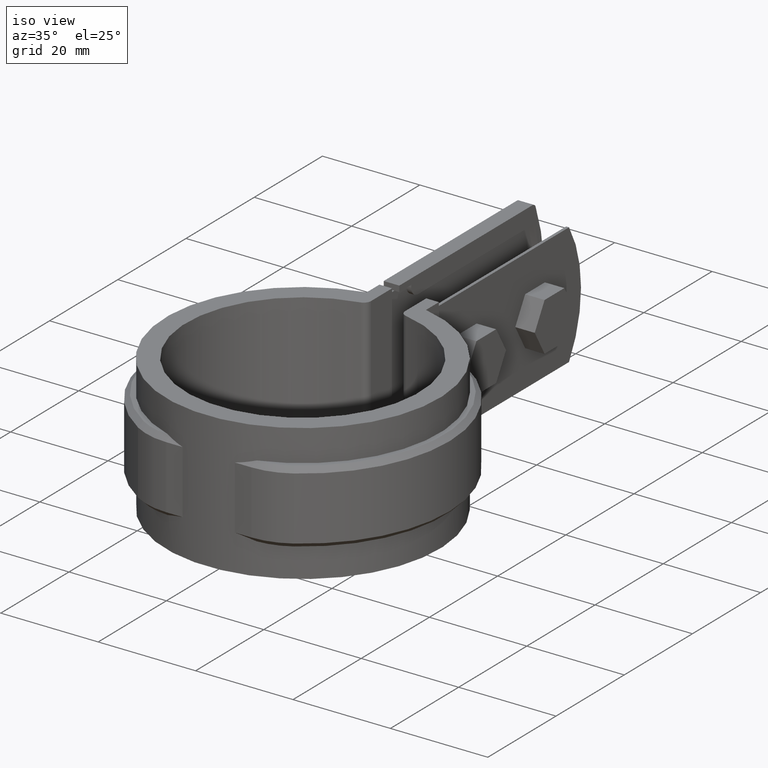
[diagram: clean part render]
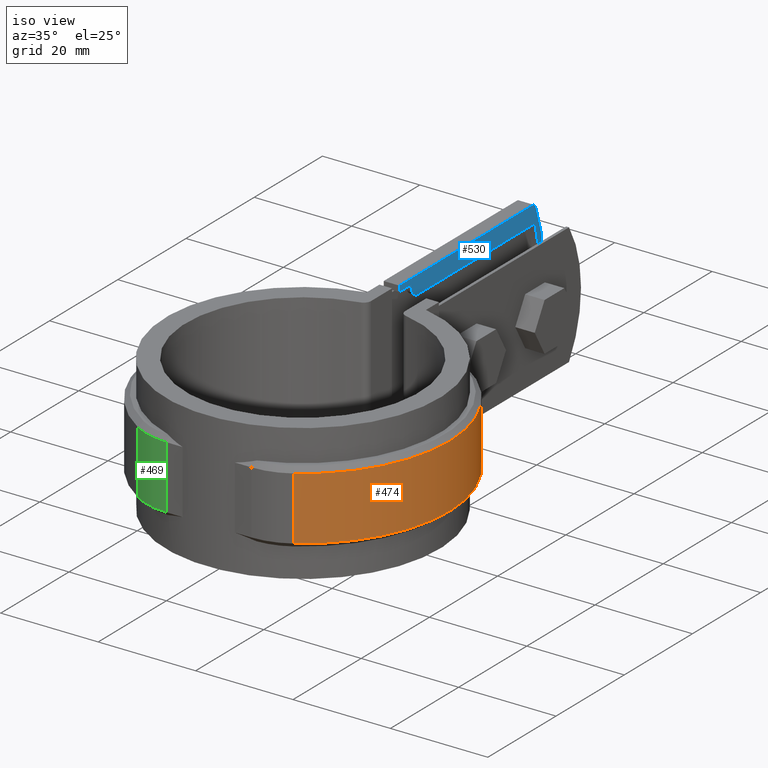
[diagram: same view with three faces highlighted in distinct colors, each labeled with its STEP entity id]
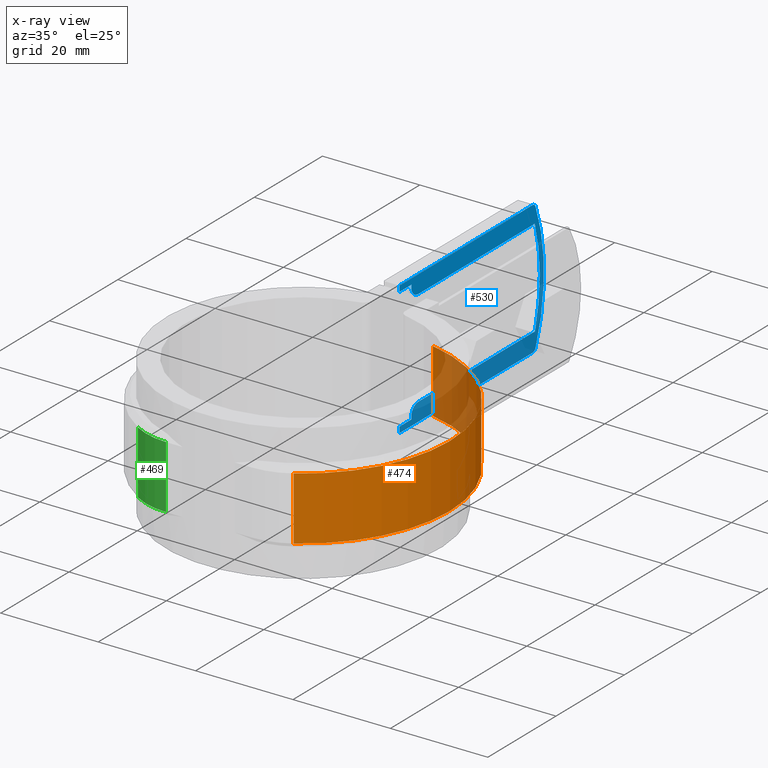
[diagram: x-ray of the same camera — body ghosted, the three highlighted faces saturated]
A machine part, iso view with three faces highlighted in distinct colors.
The next image is the same camera in x-ray (body ghosted, the three faces saturated) — at least one of them is partly hidden behind the body in this view.
Their STEP definitions:

[orange] entity #474 — the highlighted cylindrical surface (partial cylindrical patch) has radius 30.095 mm, axis along (0, 0, -1).
#474 = ADVANCED_FACE( '', ( #960 ), #961, .T. );
#960 = FACE_OUTER_BOUND( '', #2278, .T. );
#961 = CYLINDRICAL_SURFACE( '', #2279, 30.0950000000000 );
#2278 = EDGE_LOOP( '', ( #4910, #4911, #4912, #4913 ) );
#2279 = AXIS2_PLACEMENT_3D( '', #4914, #4915, #4916 );
#4910 = ORIENTED_EDGE( '', *, *, #7476, .T. );
#4911 = ORIENTED_EDGE( '', *, *, #7520, .T. );
#4912 = ORIENTED_EDGE( '', *, *, #7517, .F. );
#4913 = ORIENTED_EDGE( '', *, *, #7521, .T. );
#4914 = CARTESIAN_POINT( '', ( 8.67361737988404E-016, 0.000000000000000, -20.0000000000000 ) );
#4915 = DIRECTION( '', ( 0.000000000000000, 0.000000000000000, -1.00000000000000 ) );
#4916 = DIRECTION( '', ( 0.190592010331802, 0.981669336180815, 0.000000000000000 ) );
#7476 = EDGE_CURVE( '', #8687, #8688, #8689, .T. );
#7517 = EDGE_CURVE( '', #8757, #8758, #8759, .T. );
#7520 = EDGE_CURVE( '', #8688, #8758, #8762, .F. );
#7521 = EDGE_CURVE( '', #8757, #8687, #8763, .T. );
#8687 = VERTEX_POINT( '', #12128 );
#8688 = VERTEX_POINT( '', #12129 );
#8689 = LINE( '', #12130, #12131 );
#8757 = VERTEX_POINT( '', #12240 );
#8758 = VERTEX_POINT( '', #12241 );
#8759 = LINE( '', #12242, #12243 );
#8762 = CIRCLE( '', #12246, 30.0950000000000 );
#8763 = CIRCLE( '', #12247, 30.0950000000000 );
#12128 = CARTESIAN_POINT( '', ( 6.10000000000001, 29.4703075145137, -19.0000000000000 ) );
#12129 = CARTESIAN_POINT( '', ( 6.10000000000001, 29.4703075145137, -6.00000000000000 ) );
#12130 = CARTESIAN_POINT( '', ( 6.10000000000001, 29.4703075145137, -20.0000000000000 ) );
#12131 = VECTOR( '', #14096, 1000.00000000000 );
#12240 = CARTESIAN_POINT( '', ( 15.9728671526464, -25.5064019399818, -19.0000000000000 ) );
#12241 = CARTESIAN_POINT( '', ( 15.9728671526464, -25.5064019399818, -6.00000000000000 ) );
#12242 = CARTESIAN_POINT( '', ( 15.9728671526464, -25.5064019399818, -20.0000000000000 ) );
#12243 = VECTOR( '', #14159, 1000.00000000000 );
#12246 = AXIS2_PLACEMENT_3D( '', #14166, #14167, #14168 );
#12247 = AXIS2_PLACEMENT_3D( '', #14169, #14170, #14171 );
#14096 = DIRECTION( '', ( 0.000000000000000, 0.000000000000000, 1.00000000000000 ) );
#14159 = DIRECTION( '', ( 0.000000000000000, 0.000000000000000, 1.00000000000000 ) );
#14166 = CARTESIAN_POINT( '', ( 8.67361737988404E-016, 0.000000000000000, -6.00000000000000 ) );
#14167 = DIRECTION( '', ( 0.000000000000000, 0.000000000000000, 1.00000000000000 ) );
#14168 = DIRECTION( '', ( 1.00000000000000, 0.000000000000000, 0.000000000000000 ) );
#14169 = CARTESIAN_POINT( '', ( 8.67361737988404E-016, 0.000000000000000, -19.0000000000000 ) );
#14170 = DIRECTION( '', ( 0.000000000000000, 0.000000000000000, 1.00000000000000 ) );
#14171 = DIRECTION( '', ( 1.00000000000000, 0.000000000000000, 0.000000000000000 ) );

[blue] entity #530 — the highlighted planar face has unit normal (1, -0, 0).
#530 = ADVANCED_FACE( '', ( #1095 ), #1096, .T. );
#1095 = FACE_OUTER_BOUND( '', #2467, .T. );
#1096 = PLANE( '', #2468 );
#2467 = EDGE_LOOP( '', ( #5748, #5749, #5750, #5751, #5752, #5753, #5754, #5755, #5756, #5757, #5758, #5759, #5760, #5761, #5762, #5763 ) );
#2468 = AXIS2_PLACEMENT_3D( '', #5764, #5765, #5766 );
#5748 = ORIENTED_EDGE( '', *, *, #7780, .T. );
#5749 = ORIENTED_EDGE( '', *, *, #7781, .T. );
#5750 = ORIENTED_EDGE( '', *, *, #7782, .F. );
#5751 = ORIENTED_EDGE( '', *, *, #7783, .F. );
#5752 = ORIENTED_EDGE( '', *, *, #7784, .F. );
#5753 = ORIENTED_EDGE( '', *, *, #7785, .T. );
#5754 = ORIENTED_EDGE( '', *, *, #7786, .T. );
#5755 = ORIENTED_EDGE( '', *, *, #7787, .T. );
#5756 = ORIENTED_EDGE( '', *, *, #7788, .T. );
#5757 = ORIENTED_EDGE( '', *, *, #7789, .F. );
#5758 = ORIENTED_EDGE( '', *, *, #7790, .T. );
#5759 = ORIENTED_EDGE( '', *, *, #7791, .T. );
#5760 = ORIENTED_EDGE( '', *, *, #7792, .T. );
#5761 = ORIENTED_EDGE( '', *, *, #7793, .T. );
#5762 = ORIENTED_EDGE( '', *, *, #7794, .T. );
#5763 = ORIENTED_EDGE( '', *, *, #7795, .T. );
#5764 = CARTESIAN_POINT( '', ( -3.50000000000002, 39.2998007960258, -12.4999999999986 ) );
#5765 = DIRECTION( '', ( 1.00000000000000, -6.82234018656195E-016, 3.52801195032885E-016 ) );
#5766 = DIRECTION( '', ( 7.65161862187671E-016, 0.924758059784180, -0.380555555555558 ) );
#7780 = EDGE_CURVE( '', #9249, #9250, #9251, .T. );
#7781 = EDGE_CURVE( '', #9250, #9252, #9253, .T. );
#7782 = EDGE_CURVE( '', #9254, #9252, #9255, .T. );
#7783 = EDGE_CURVE( '', #9256, #9254, #9257, .T. );
#7784 = EDGE_CURVE( '', #9258, #9256, #9259, .T. );
#7785 = EDGE_CURVE( '', #9258, #9260, #9261, .T. );
#7786 = EDGE_CURVE( '', #9260, #9262, #9263, .T. );
#7787 = EDGE_CURVE( '', #9262, #9264, #9265, .T. );
#7788 = EDGE_CURVE( '', #9264, #9266, #9267, .T. );
#7789 = EDGE_CURVE( '', #9268, #9266, #9269, .T. );
#7790 = EDGE_CURVE( '', #9268, #9270, #9271, .T. );
#7791 = EDGE_CURVE( '', #9270, #9272, #9273, .T. );
#7792 = EDGE_CURVE( '', #9272, #9274, #9275, .T. );
#7793 = EDGE_CURVE( '', #9274, #9276, #9277, .T. );
#7794 = EDGE_CURVE( '', #9276, #9278, #9279, .T. );
#7795 = EDGE_CURVE( '', #9278, #9249, #9280, .T. );
#9249 = VERTEX_POINT( '', #12966 );
#9250 = VERTEX_POINT( '', #12967 );
#9251 = LINE( '', #12968, #12969 );
#9252 = VERTEX_POINT( '', #12970 );
#9253 = CIRCLE( '', #12971, 35.1999999999922 );
#9254 = VERTEX_POINT( '', #12972 );
#9255 = LINE( '', #12973, #12974 );
#9256 = VERTEX_POINT( '', #12975 );
#9257 = CIRCLE( '', #12976, 1.99999999999954 );
#9258 = VERTEX_POINT( '', #12977 );
#9259 = LINE( '', #12978, #12979 );
#9260 = VERTEX_POINT( '', #12980 );
#9261 = LINE( '', #12981, #12982 );
#9262 = VERTEX_POINT( '', #12983 );
#9263 = LINE( '', #12984, #12985 );
#9264 = VERTEX_POINT( '', #12986 );
#9265 = LINE( '', #12987, #12988 );
#9266 = VERTEX_POINT( '', #12989 );
#9267 = CIRCLE( '', #12990, 0.999999999999770 );
#9268 = VERTEX_POINT( '', #12991 );
#9269 = CIRCLE( '', #12992, 36.3999999999919 );
#9270 = VERTEX_POINT( '', #12993 );
#9271 = CIRCLE( '', #12994, 0.999999999999770 );
#9272 = VERTEX_POINT( '', #12995 );
#9273 = LINE( '', #12996, #12997 );
#9274 = VERTEX_POINT( '', #12998 );
#9275 = LINE( '', #12999, #13000 );
#9276 = VERTEX_POINT( '', #13001 );
#9277 = LINE( '', #13002, #13003 );
#9278 = VERTEX_POINT( '', #13004 );
#9279 = LINE( '', #13005, #13006 );
#9280 = CIRCLE( '', #13007, 1.99999999999954 );
#12966 = CARTESIAN_POINT( '', ( -3.50000000000002, 38.7998007960259, -2.50000000000083 ) );
#12967 = CARTESIAN_POINT( '', ( -3.50000000000000, 73.0494674610386, -2.50000000000083 ) );
#12968 = CARTESIAN_POINT( '', ( -3.50000000000002, 38.7998007960259, -2.50000000000083 ) );
#12969 = VECTOR( '', #14510, 999.999999999923 );
#12970 = CARTESIAN_POINT( '', ( -3.49999999999999, 73.0494674610386, -22.4999999999964 ) );
#12971 = AXIS2_PLACEMENT_3D( '', #14511, #14512, #14513 );
#12972 = CARTESIAN_POINT( '', ( -3.50000000000001, 38.7998007960259, -22.4999999999964 ) );
#12973 = CARTESIAN_POINT( '', ( -3.50000000000001, 38.7998007960259, -22.4999999999964 ) );
#12974 = VECTOR( '', #14514, 999.999999999923 );
#12975 = CARTESIAN_POINT( '', ( -3.50000000000001, 36.7998007960264, -24.4999999999960 ) );
#12976 = AXIS2_PLACEMENT_3D( '', #14515, #14516, #14517 );
#12977 = CARTESIAN_POINT( '', ( -3.50000000000001, 36.7998007960264, -24.9999999999958 ) );
#12978 = CARTESIAN_POINT( '', ( -3.50000000000001, 36.7998007960264, -24.9999999999958 ) );
#12979 = VECTOR( '', #14518, 999.999999999931 );
#12980 = CARTESIAN_POINT( '', ( -3.50000000000002, 33.2998007960272, -24.9999999999958 ) );
#12981 = CARTESIAN_POINT( '', ( -3.49999999999999, 71.9915428725733, -24.9999999999958 ) );
#12982 = VECTOR( '', #14519, 999.999999999923 );
#12983 = CARTESIAN_POINT( '', ( -3.50000000000002, 33.2998007960272, -26.1999999999956 ) );
#12984 = CARTESIAN_POINT( '', ( -3.50000000000002, 33.2998007960272, -24.9999999999958 ) );
#12985 = VECTOR( '', #14520, 999.999999999932 );
#12986 = CARTESIAN_POINT( '', ( -3.49999999999999, 72.3432570317088, -26.1999999999956 ) );
#12987 = CARTESIAN_POINT( '', ( -3.50000000000002, 33.2998007960272, -26.1999999999956 ) );
#12988 = VECTOR( '', #14521, 999.999999999923 );
#12989 = CARTESIAN_POINT( '', ( -3.49999999999999, 73.2766879988185, -25.5587570621426 ) );
#12990 = AXIS2_PLACEMENT_3D( '', #14522, #14523, #14524 );
#12991 = CARTESIAN_POINT( '', ( -3.50000000000000, 73.2766879988185, 0.558757062145382 ) );
#12992 = AXIS2_PLACEMENT_3D( '', #14525, #14526, #14527 );
#12993 = CARTESIAN_POINT( '', ( -3.50000000000000, 72.3432570317088, 1.19999999999836 ) );
#12994 = AXIS2_PLACEMENT_3D( '', #14528, #14529, #14530 );
#12995 = CARTESIAN_POINT( '', ( -3.50000000000003, 33.2998007960272, 1.19999999999836 ) );
#12996 = CARTESIAN_POINT( '', ( -3.50000000000000, 72.5910909482487, 1.19999999999836 ) );
#12997 = VECTOR( '', #14531, 999.999999999923 );
#12998 = CARTESIAN_POINT( '', ( -3.50000000000003, 33.2998007960272, -1.37682472596559E-012 ) );
#12999 = CARTESIAN_POINT( '', ( -3.50000000000003, 33.2998007960272, 1.19999999999836 ) );
#13000 = VECTOR( '', #14532, 999.999999999932 );
#13001 = CARTESIAN_POINT( '', ( -3.50000000000002, 36.7998007960264, -1.38422068639798E-012 ) );
#13002 = CARTESIAN_POINT( '', ( -3.50000000000003, 33.2998007960272, -1.37335527901364E-012 ) );
#13003 = VECTOR( '', #14533, 999.999999999923 );
#13004 = CARTESIAN_POINT( '', ( -3.50000000000002, 36.7998007960264, -0.500000000001264 ) );
#13005 = CARTESIAN_POINT( '', ( -3.50000000000002, 36.7998007960264, -1.38422068639798E-012 ) );
#13006 = VECTOR( '', #14534, 999.999999999931 );
#13007 = AXIS2_PLACEMENT_3D( '', #14535, #14536, #14537 );
#14510 = DIRECTION( '', ( 6.66766614912277E-016, 1.00000000000000, 1.97370352765424E-018 ) );
#14511 = CARTESIAN_POINT( '', ( -3.50000000000002, 39.2998007960258, -12.4999999999986 ) );
#14512 = DIRECTION( '', ( -1.00000000000000, 6.65444511971228E-016, -3.52801195032886E-016 ) );
#14513 = DIRECTION( '', ( -3.52801195032886E-016, 1.43114686251378E-017, 1.00000000000000 ) );
#14514 = DIRECTION( '', ( 6.66766614912277E-016, 1.00000000000000, 1.97370352765424E-018 ) );
#14515 = CARTESIAN_POINT( '', ( -3.50000000000001, 38.7998007960259, -24.4999999999959 ) );
#14516 = DIRECTION( '', ( -1.00000000000000, 6.63400231144586E-016, -3.71199524710700E-016 ) );
#14517 = DIRECTION( '', ( -6.63400231144586E-016, -1.00000000000000, 2.42032289485017E-016 ) );
#14518 = DIRECTION( '', ( -3.52801195032885E-016, 2.42032289485015E-016, 1.00000000000000 ) );
#14519 = DIRECTION( '', ( -6.66766614912277E-016, -1.00000000000000, 6.98226198563940E-017 ) );
#14520 = DIRECTION( '', ( 3.52801195032885E-016, -2.36356073550167E-016, -1.00000000000000 ) );
#14521 = DIRECTION( '', ( 6.66766614912277E-016, 1.00000000000000, -6.98226198563940E-017 ) );
#14522 = CARTESIAN_POINT( '', ( -3.49999999999999, 72.3432570317088, -25.1999999999958 ) );
#14523 = DIRECTION( '', ( 1.00000000000000, -6.82234018656195E-016, 3.52801195032885E-016 ) );
#14524 = DIRECTION( '', ( 6.82234018656195E-016, 1.00000000000000, -1.25333771087652E-016 ) );
#14525 = CARTESIAN_POINT( '', ( -3.50000000000002, 39.2998007960258, -12.4999999999986 ) );
#14526 = DIRECTION( '', ( -1.00000000000000, 6.97454658812985E-016, -3.52168329192428E-016 ) );
#14527 = DIRECTION( '', ( -3.52168329192428E-016, -9.67108338373770E-017, 1.00000000000000 ) );
#14528 = CARTESIAN_POINT( '', ( -3.50000000000000, 72.3432570317088, 0.199999999998573 ) );
#14529 = DIRECTION( '', ( 1.00000000000000, -6.82234018656195E-016, 3.52801195032885E-016 ) );
#14530 = DIRECTION( '', ( 6.82234018656195E-016, 1.00000000000000, -1.25333771087652E-016 ) );
#14531 = DIRECTION( '', ( -6.66766614912277E-016, -1.00000000000000, 6.98226198563940E-017 ) );
#14532 = DIRECTION( '', ( 3.52801195032885E-016, -2.36356073550167E-016, -1.00000000000000 ) );
#14533 = DIRECTION( '', ( 6.66766614912277E-016, 1.00000000000000, -6.98226198563940E-017 ) );
#14534 = DIRECTION( '', ( 3.52801195032885E-016, -2.42032289485015E-016, -1.00000000000000 ) );
#14535 = CARTESIAN_POINT( '', ( -3.50000000000002, 38.7998007960259, -0.500000000001269 ) );
#14536 = DIRECTION( '', ( 1.00000000000000, -6.63400231144586E-016, 3.34402865355070E-016 ) );
#14537 = DIRECTION( '', ( -6.63400231144586E-016, -1.00000000000000, 3.50452506733568E-016 ) );

[green] entity #469 — the highlighted cylindrical surface (partial cylindrical patch) has radius 13.6 mm, axis along (0, 0, -1).
#469 = ADVANCED_FACE( '', ( #950 ), #951, .T. );
#950 = FACE_OUTER_BOUND( '', #2268, .T. );
#951 = CYLINDRICAL_SURFACE( '', #2269, 13.6000000000000 );
#2268 = EDGE_LOOP( '', ( #4875, #4876, #4877, #4878 ) );
#2269 = AXIS2_PLACEMENT_3D( '', #4879, #4880, #4881 );
#4875 = ORIENTED_EDGE( '', *, *, #7506, .F. );
#4876 = ORIENTED_EDGE( '', *, *, #7508, .T. );
#4877 = ORIENTED_EDGE( '', *, *, #7503, .T. );
#4878 = ORIENTED_EDGE( '', *, *, #7509, .T. );
#4879 = CARTESIAN_POINT( '', ( -8.75469159936545, -13.9800000000000, -20.0000000000000 ) );
#4880 = DIRECTION( '', ( 0.000000000000000, 0.000000000000000, -1.00000000000000 ) );
#4881 = DIRECTION( '', ( 0.190592010331802, 0.981669336180815, 0.000000000000000 ) );
#7503 = EDGE_CURVE( '', #8736, #8595, #8737, .T. );
#7506 = EDGE_CURVE( '', #8739, #8741, #8742, .T. );
#7508 = EDGE_CURVE( '', #8739, #8736, #8744, .F. );
#7509 = EDGE_CURVE( '', #8595, #8741, #8745, .T. );
#8595 = VERTEX_POINT( '', #11955 );
#8736 = VERTEX_POINT( '', #12213 );
#8737 = LINE( '', #12214, #12215 );
#8739 = VERTEX_POINT( '', #12218 );
#8741 = VERTEX_POINT( '', #12220 );
#8742 = LINE( '', #12221, #12222 );
#8744 = CIRCLE( '', #12224, 13.6000000000000 );
#8745 = CIRCLE( '', #12225, 13.6000000000000 );
#11955 = CARTESIAN_POINT( '', ( -8.75469159936545, -27.5800000000000, -6.00000000000000 ) );
#12213 = CARTESIAN_POINT( '', ( -8.75469159936545, -27.5800000000000, -19.0000000000000 ) );
#12214 = CARTESIAN_POINT( '', ( -8.75469159936545, -27.5800000000000, -20.0000000000000 ) );
#12215 = VECTOR( '', #14129, 1000.00000000000 );
#12218 = CARTESIAN_POINT( '', ( -15.9728671526465, -25.5064019399818, -19.0000000000000 ) );
#12220 = CARTESIAN_POINT( '', ( -15.9728671526465, -25.5064019399818, -6.00000000000000 ) );
#12221 = CARTESIAN_POINT( '', ( -15.9728671526465, -25.5064019399818, -20.0000000000000 ) );
#12222 = VECTOR( '', #14134, 1000.00000000000 );
#12224 = AXIS2_PLACEMENT_3D( '', #14138, #14139, #14140 );
#12225 = AXIS2_PLACEMENT_3D( '', #14141, #14142, #14143 );
#14129 = DIRECTION( '', ( 0.000000000000000, 0.000000000000000, 1.00000000000000 ) );
#14134 = DIRECTION( '', ( 0.000000000000000, 0.000000000000000, 1.00000000000000 ) );
#14138 = CARTESIAN_POINT( '', ( -8.75469159936545, -13.9800000000000, -19.0000000000000 ) );
#14139 = DIRECTION( '', ( 0.000000000000000, 0.000000000000000, -1.00000000000000 ) );
#14140 = DIRECTION( '', ( -1.00000000000000, 0.000000000000000, 0.000000000000000 ) );
#14141 = CARTESIAN_POINT( '', ( -8.75469159936545, -13.9800000000000, -6.00000000000000 ) );
#14142 = DIRECTION( '', ( 0.000000000000000, 0.000000000000000, -1.00000000000000 ) );
#14143 = DIRECTION( '', ( -1.00000000000000, 0.000000000000000, 0.000000000000000 ) );